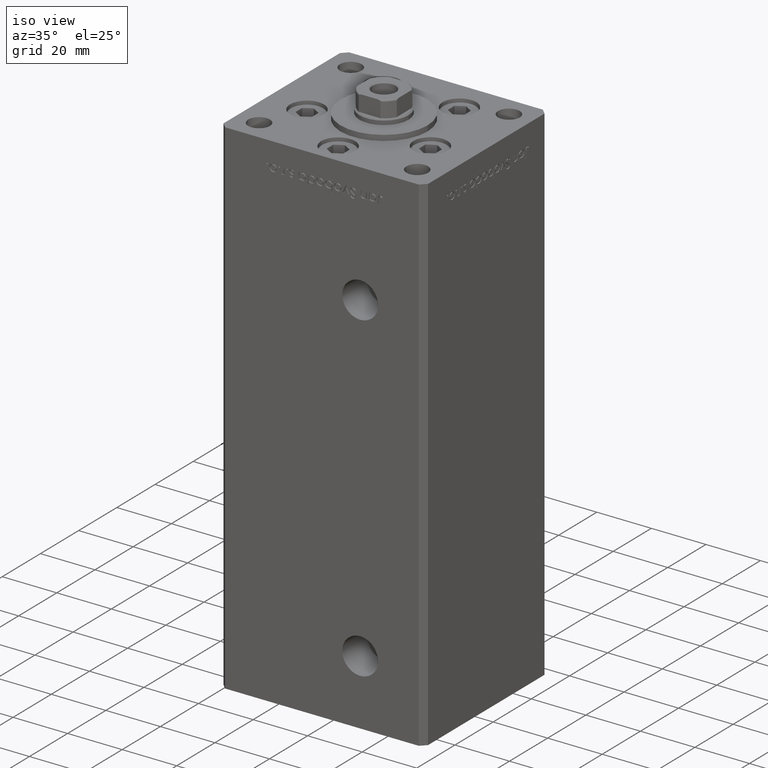
[diagram: clean part render]
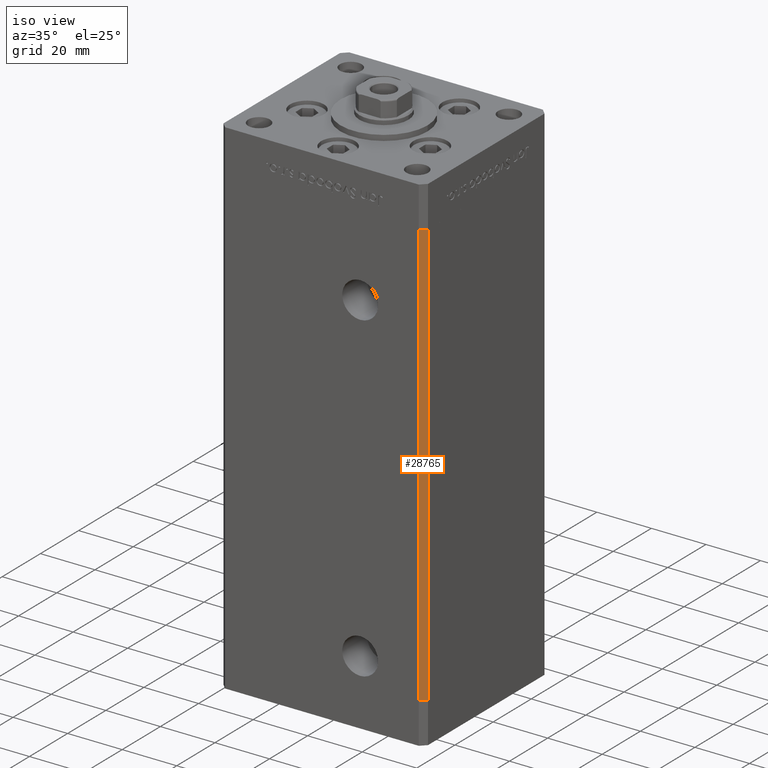
[diagram: same view with one face highlighted and labeled with its STEP entity id]
A machine part, iso view. The second image highlights one B-rep face of the part: STEP entity #28765.
In plain terms, the highlighted planar face has unit normal (0.7071, -0.7071, 0).
Its self-contained STEP definition (entity closure, byte-faithful):
#2181 = EDGE_LOOP ( 'NONE', ( #22115, #44385, #16579, #8441 ) ) ;
#2792 = LINE ( 'NONE', #6742, #48407 ) ;
#3424 = EDGE_CURVE ( 'NONE', #31502, #51449, #2792, .T. ) ;
#3481 = CARTESIAN_POINT ( 'NONE',  ( 37.49999999999999289, -30.50000000000000000, 0.000000000000000000 ) ) ;
#4570 = VECTOR ( 'NONE', #37100, 1000.000000000000000 ) ;
#5859 = VERTEX_POINT ( 'NONE', #46879 ) ;
#6097 = EDGE_CURVE ( 'NONE', #51449, #5859, #17530, .T. ) ;
#6737 = DIRECTION ( 'NONE',  ( -0.7071067811865474617, -0.7071067811865474617, 0.000000000000000000 ) ) ;
#6742 = CARTESIAN_POINT ( 'NONE',  ( 37.49999999999999289, -30.50000000000000000, 156.0000000000000000 ) ) ;
#8441 = ORIENTED_EDGE ( 'NONE', *, *, #6097, .T. ) ;
#10580 = PLANE ( 'NONE',  #23589 ) ;
#13161 = VERTEX_POINT ( 'NONE', #3481 ) ;
#16579 = ORIENTED_EDGE ( 'NONE', *, *, #3424, .T. ) ;
#17530 = LINE ( 'NONE', #40794, #4570 ) ;
#18491 = FACE_OUTER_BOUND ( 'NONE', #2181, .T. ) ;
#22115 = ORIENTED_EDGE ( 'NONE', *, *, #46416, .F. ) ;
#23589 = AXIS2_PLACEMENT_3D ( 'NONE', #34612, #26684, #42770 ) ;
#25181 = LINE ( 'NONE', #34162, #48876 ) ;
#26684 = DIRECTION ( 'NONE',  ( 0.7071067811865475727, -0.7071067811865475727, 0.000000000000000000 ) ) ;
#28765 = ADVANCED_FACE ( 'NONE', ( #18491 ), #10580, .T. ) ;
#29213 = EDGE_CURVE ( 'NONE', #31502, #13161, #25181, .T. ) ;
#31502 = VERTEX_POINT ( 'NONE', #49169 ) ;
#33279 = CARTESIAN_POINT ( 'NONE',  ( 35.49999999999999289, -32.50000000000000000, 156.0000000000000000 ) ) ;
#34162 = CARTESIAN_POINT ( 'NONE',  ( 37.49999999999999289, -30.50000000000000000, 156.0000000000000000 ) ) ;
#34612 = CARTESIAN_POINT ( 'NONE',  ( 37.49999999999999289, -30.50000000000000000, 156.0000000000000000 ) ) ;
#35537 = DIRECTION ( 'NONE',  ( -0.7071067811865474617, -0.7071067811865474617, 0.000000000000000000 ) ) ;
#37100 = DIRECTION ( 'NONE',  ( -0.000000000000000000, -0.000000000000000000, -1.000000000000000000 ) ) ;
#37154 = VECTOR ( 'NONE', #6737, 1000.000000000000114 ) ;
#38467 = CARTESIAN_POINT ( 'NONE',  ( 37.49999999999999289, -30.50000000000000000, 0.000000000000000000 ) ) ;
#40794 = CARTESIAN_POINT ( 'NONE',  ( 35.49999999999999289, -32.50000000000000000, 156.0000000000000000 ) ) ;
#42770 = DIRECTION ( 'NONE',  ( 0.7071067811865474617, 0.7071067811865474617, 0.000000000000000000 ) ) ;
#44385 = ORIENTED_EDGE ( 'NONE', *, *, #29213, .F. ) ;
#45492 = DIRECTION ( 'NONE',  ( -0.000000000000000000, -0.000000000000000000, -1.000000000000000000 ) ) ;
#46416 = EDGE_CURVE ( 'NONE', #13161, #5859, #50572, .T. ) ;
#46879 = CARTESIAN_POINT ( 'NONE',  ( 35.49999999999999289, -32.50000000000000000, 0.000000000000000000 ) ) ;
#48407 = VECTOR ( 'NONE', #35537, 1000.000000000000114 ) ;
#48876 = VECTOR ( 'NONE', #45492, 1000.000000000000000 ) ;
#49169 = CARTESIAN_POINT ( 'NONE',  ( 37.49999999999999289, -30.50000000000000000, 156.0000000000000000 ) ) ;
#50572 = LINE ( 'NONE', #38467, #37154 ) ;
#51449 = VERTEX_POINT ( 'NONE', #33279 ) ;